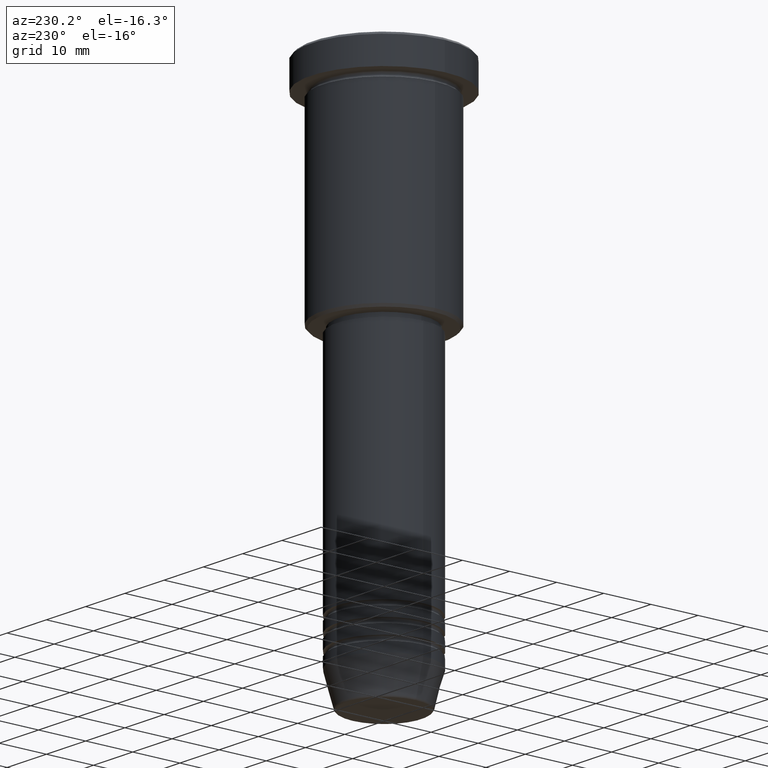
[diagram: clean part render]
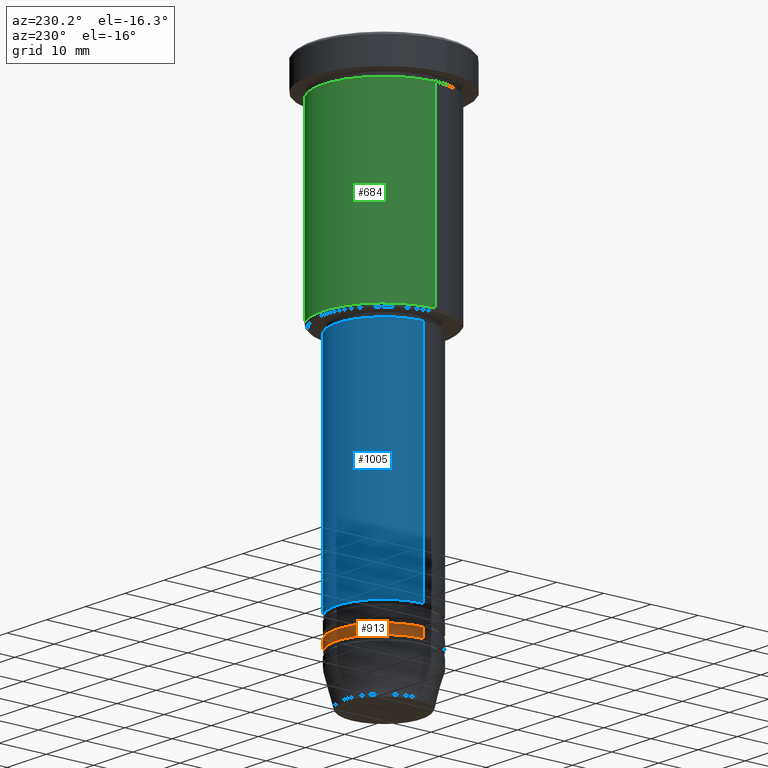
[diagram: same view with three faces highlighted in distinct colors, each labeled with its STEP entity id]
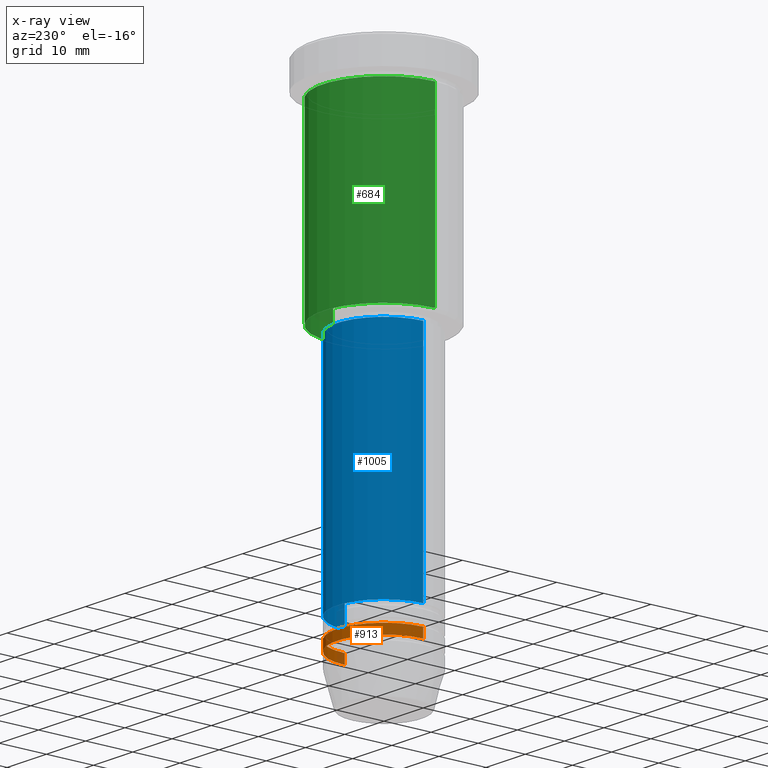
[diagram: x-ray of the same camera — body ghosted, the three highlighted faces saturated]
A machine part, auxiliary view with three faces highlighted in distinct colors.
The next image is the same camera in x-ray (body ghosted, the three faces saturated) — at least one of them is partly hidden behind the body in this view.
Their STEP definitions:

[orange] entity #913 — the highlighted cylindrical surface (partial cylindrical patch) has radius 10 mm, axis along (-0, -0, 1).
#13 = CARTESIAN_POINT ( 'NONE',  ( 10.00000000000000000, 0.000000000000000000, 0.000000000000000000 ) ) ;
#79 = DIRECTION ( 'NONE',  ( -0.000000000000000000, -0.000000000000000000, 1.000000000000000000 ) ) ;
#85 = CARTESIAN_POINT ( 'NONE',  ( 0.000000000000000000, 0.000000000000000000, -98.99999999999998579 ) ) ;
#124 = CARTESIAN_POINT ( 'NONE',  ( 0.000000000000000000, 0.000000000000000000, 0.000000000000000000 ) ) ;
#197 = LINE ( 'NONE', #13, #371 ) ;
#204 = AXIS2_PLACEMENT_3D ( 'NONE', #124, #594, #304 ) ;
#224 = EDGE_CURVE ( 'NONE', #242, #749, #1117, .T. ) ;
#240 = EDGE_CURVE ( 'NONE', #242, #1168, #197, .T. ) ;
#242 = VERTEX_POINT ( 'NONE', #657 ) ;
#291 = DIRECTION ( 'NONE',  ( -0.000000000000000000, -0.000000000000000000, 1.000000000000000000 ) ) ;
#292 = EDGE_CURVE ( 'NONE', #1168, #963, #836, .T. ) ;
#301 = ORIENTED_EDGE ( 'NONE', *, *, #224, .T. ) ;
#304 = DIRECTION ( 'NONE',  ( 1.000000000000000000, 0.000000000000000000, 0.000000000000000000 ) ) ;
#326 = ORIENTED_EDGE ( 'NONE', *, *, #240, .F. ) ;
#339 = VECTOR ( 'NONE', #724, 1000.000000000000000 ) ;
#363 = LINE ( 'NONE', #1113, #339 ) ;
#371 = VECTOR ( 'NONE', #291, 1000.000000000000000 ) ;
#379 = DIRECTION ( 'NONE',  ( -0.000000000000000000, -0.000000000000000000, 1.000000000000000000 ) ) ;
#410 = ORIENTED_EDGE ( 'NONE', *, *, #292, .F. ) ;
#480 = CARTESIAN_POINT ( 'NONE',  ( 10.00000000000000000, 0.000000000000000000, -98.99999999999998579 ) ) ;
#565 = CARTESIAN_POINT ( 'NONE',  ( -10.00000000000000000, 1.224646799147353256E-15, -100.9999999999999716 ) ) ;
#566 = DIRECTION ( 'NONE',  ( 1.000000000000000000, 0.000000000000000000, 0.000000000000000000 ) ) ;
#594 = DIRECTION ( 'NONE',  ( -0.000000000000000000, -0.000000000000000000, 1.000000000000000000 ) ) ;
#657 = CARTESIAN_POINT ( 'NONE',  ( 10.00000000000000000, 0.000000000000000000, -100.9999999999999716 ) ) ;
#724 = DIRECTION ( 'NONE',  ( -0.000000000000000000, -0.000000000000000000, 1.000000000000000000 ) ) ;
#749 = VERTEX_POINT ( 'NONE', #565 ) ;
#756 = FACE_OUTER_BOUND ( 'NONE', #1015, .T. ) ;
#836 = CIRCLE ( 'NONE', #1138, 10.00000000000000000 ) ;
#913 = ADVANCED_FACE ( 'NONE', ( #756 ), #1125, .T. ) ;
#963 = VERTEX_POINT ( 'NONE', #1075 ) ;
#1015 = EDGE_LOOP ( 'NONE', ( #301, #1136, #410, #326 ) ) ;
#1024 = AXIS2_PLACEMENT_3D ( 'NONE', #1163, #79, #1077 ) ;
#1075 = CARTESIAN_POINT ( 'NONE',  ( -10.00000000000000000, 1.224646799147353256E-15, -98.99999999999998579 ) ) ;
#1077 = DIRECTION ( 'NONE',  ( 1.000000000000000000, 0.000000000000000000, 0.000000000000000000 ) ) ;
#1113 = CARTESIAN_POINT ( 'NONE',  ( -10.00000000000000000, 1.224646799147353256E-15, 0.000000000000000000 ) ) ;
#1117 = CIRCLE ( 'NONE', #1024, 10.00000000000000000 ) ;
#1125 = CYLINDRICAL_SURFACE ( 'NONE', #204, 10.00000000000000000 ) ;
#1136 = ORIENTED_EDGE ( 'NONE', *, *, #1159, .T. ) ;
#1138 = AXIS2_PLACEMENT_3D ( 'NONE', #85, #379, #566 ) ;
#1159 = EDGE_CURVE ( 'NONE', #749, #963, #363, .T. ) ;
#1163 = CARTESIAN_POINT ( 'NONE',  ( 0.000000000000000000, 0.000000000000000000, -100.9999999999999716 ) ) ;
#1168 = VERTEX_POINT ( 'NONE', #480 ) ;

[blue] entity #1005 — the highlighted cylindrical surface (partial cylindrical patch) has radius 10 mm, axis along (-0, -0, 1).
#55 = CIRCLE ( 'NONE', #472, 10.00000000000000000 ) ;
#161 = DIRECTION ( 'NONE',  ( -0.000000000000000000, -0.000000000000000000, 1.000000000000000000 ) ) ;
#181 = CYLINDRICAL_SURFACE ( 'NONE', #1142, 10.00000000000000000 ) ;
#182 = VERTEX_POINT ( 'NONE', #972 ) ;
#200 = CARTESIAN_POINT ( 'NONE',  ( 0.000000000000000000, 0.000000000000000000, -94.99999999999997158 ) ) ;
#201 = VECTOR ( 'NONE', #645, 1000.000000000000000 ) ;
#212 = ORIENTED_EDGE ( 'NONE', *, *, #908, .T. ) ;
#244 = VERTEX_POINT ( 'NONE', #653 ) ;
#278 = EDGE_CURVE ( 'NONE', #244, #182, #286, .T. ) ;
#286 = LINE ( 'NONE', #995, #201 ) ;
#293 = DIRECTION ( 'NONE',  ( -0.000000000000000000, -0.000000000000000000, 1.000000000000000000 ) ) ;
#340 = DIRECTION ( 'NONE',  ( 1.000000000000000000, 0.000000000000000000, 0.000000000000000000 ) ) ;
#349 = CARTESIAN_POINT ( 'NONE',  ( 10.00000000000000000, 0.000000000000000000, 0.000000000000000000 ) ) ;
#403 = DIRECTION ( 'NONE',  ( 1.000000000000000000, 0.000000000000000000, 0.000000000000000000 ) ) ;
#433 = DIRECTION ( 'NONE',  ( -0.000000000000000000, -0.000000000000000000, 1.000000000000000000 ) ) ;
#449 = CARTESIAN_POINT ( 'NONE',  ( 0.000000000000000000, 0.000000000000000000, 0.000000000000000000 ) ) ;
#459 = VERTEX_POINT ( 'NONE', #589 ) ;
#472 = AXIS2_PLACEMENT_3D ( 'NONE', #200, #293, #403 ) ;
#490 = AXIS2_PLACEMENT_3D ( 'NONE', #689, #161, #340 ) ;
#584 = EDGE_CURVE ( 'NONE', #459, #182, #1004, .T. ) ;
#589 = CARTESIAN_POINT ( 'NONE',  ( 10.00000000000000000, 0.000000000000000000, -47.00000000000000711 ) ) ;
#622 = DIRECTION ( 'NONE',  ( 1.000000000000000000, 0.000000000000000000, 0.000000000000000000 ) ) ;
#645 = DIRECTION ( 'NONE',  ( -0.000000000000000000, -0.000000000000000000, 1.000000000000000000 ) ) ;
#652 = EDGE_CURVE ( 'NONE', #1097, #459, #882, .T. ) ;
#653 = CARTESIAN_POINT ( 'NONE',  ( -10.00000000000000000, 1.224646799147353256E-15, -94.99999999999997158 ) ) ;
#689 = CARTESIAN_POINT ( 'NONE',  ( 0.000000000000000000, 0.000000000000000000, -47.00000000000000711 ) ) ;
#822 = ORIENTED_EDGE ( 'NONE', *, *, #278, .T. ) ;
#882 = LINE ( 'NONE', #349, #1026 ) ;
#908 = EDGE_CURVE ( 'NONE', #1097, #244, #55, .T. ) ;
#970 = DIRECTION ( 'NONE',  ( -0.000000000000000000, -0.000000000000000000, 1.000000000000000000 ) ) ;
#972 = CARTESIAN_POINT ( 'NONE',  ( -10.00000000000000000, 1.224646799147353256E-15, -47.00000000000000711 ) ) ;
#995 = CARTESIAN_POINT ( 'NONE',  ( -10.00000000000000000, 1.224646799147353256E-15, 0.000000000000000000 ) ) ;
#1004 = CIRCLE ( 'NONE', #490, 10.00000000000000000 ) ;
#1005 = ADVANCED_FACE ( 'NONE', ( #1078 ), #181, .T. ) ;
#1020 = ORIENTED_EDGE ( 'NONE', *, *, #652, .F. ) ;
#1026 = VECTOR ( 'NONE', #970, 1000.000000000000000 ) ;
#1027 = ORIENTED_EDGE ( 'NONE', *, *, #584, .F. ) ;
#1078 = FACE_OUTER_BOUND ( 'NONE', #1093, .T. ) ;
#1088 = CARTESIAN_POINT ( 'NONE',  ( 10.00000000000000000, 0.000000000000000000, -94.99999999999997158 ) ) ;
#1093 = EDGE_LOOP ( 'NONE', ( #212, #822, #1027, #1020 ) ) ;
#1097 = VERTEX_POINT ( 'NONE', #1088 ) ;
#1142 = AXIS2_PLACEMENT_3D ( 'NONE', #449, #433, #622 ) ;

[green] entity #684 — the highlighted cylindrical surface (partial cylindrical patch) has radius 13 mm, axis along (-0, -0, 1).
#23 = EDGE_CURVE ( 'NONE', #875, #585, #235, .T. ) ;
#58 = FACE_OUTER_BOUND ( 'NONE', #1003, .T. ) ;
#64 = ORIENTED_EDGE ( 'NONE', *, *, #1013, .T. ) ;
#69 = CYLINDRICAL_SURFACE ( 'NONE', #355, 13.00000000000000000 ) ;
#89 = CARTESIAN_POINT ( 'NONE',  ( 13.00000000000000000, 0.000000000000000000, -6.999999999999995559 ) ) ;
#136 = ORIENTED_EDGE ( 'NONE', *, *, #662, .F. ) ;
#143 = DIRECTION ( 'NONE',  ( -0.000000000000000000, -0.000000000000000000, 1.000000000000000000 ) ) ;
#187 = CIRCLE ( 'NONE', #417, 13.00000000000000000 ) ;
#235 = LINE ( 'NONE', #506, #430 ) ;
#296 = CARTESIAN_POINT ( 'NONE',  ( 13.00000000000000000, 0.000000000000000000, -45.50000000000002842 ) ) ;
#325 = DIRECTION ( 'NONE',  ( -0.000000000000000000, -0.000000000000000000, 1.000000000000000000 ) ) ;
#344 = CARTESIAN_POINT ( 'NONE',  ( -13.00000000000000000, 1.592040838891559095E-15, -6.999999999999995559 ) ) ;
#355 = AXIS2_PLACEMENT_3D ( 'NONE', #429, #800, #701 ) ;
#417 = AXIS2_PLACEMENT_3D ( 'NONE', #924, #825, #1183 ) ;
#429 = CARTESIAN_POINT ( 'NONE',  ( 0.000000000000000000, 0.000000000000000000, 0.000000000000000000 ) ) ;
#430 = VECTOR ( 'NONE', #782, 1000.000000000000000 ) ;
#506 = CARTESIAN_POINT ( 'NONE',  ( -13.00000000000000000, 1.592040838891559095E-15, 0.000000000000000000 ) ) ;
#534 = DIRECTION ( 'NONE',  ( -1.000000000000000000, 0.000000000000000000, 0.000000000000000000 ) ) ;
#585 = VERTEX_POINT ( 'NONE', #344 ) ;
#586 = CARTESIAN_POINT ( 'NONE',  ( -13.00000000000000000, 1.592040838891559095E-15, -45.50000000000002842 ) ) ;
#647 = VECTOR ( 'NONE', #143, 1000.000000000000000 ) ;
#662 = EDGE_CURVE ( 'NONE', #867, #768, #962, .T. ) ;
#684 = ADVANCED_FACE ( 'NONE', ( #58 ), #69, .T. ) ;
#701 = DIRECTION ( 'NONE',  ( 1.000000000000000000, 0.000000000000000000, 0.000000000000000000 ) ) ;
#768 = VERTEX_POINT ( 'NONE', #89 ) ;
#777 = CARTESIAN_POINT ( 'NONE',  ( 0.000000000000000000, 0.000000000000000000, -45.50000000000002842 ) ) ;
#782 = DIRECTION ( 'NONE',  ( -0.000000000000000000, -0.000000000000000000, 1.000000000000000000 ) ) ;
#800 = DIRECTION ( 'NONE',  ( -0.000000000000000000, -0.000000000000000000, 1.000000000000000000 ) ) ;
#824 = EDGE_CURVE ( 'NONE', #768, #585, #187, .T. ) ;
#825 = DIRECTION ( 'NONE',  ( -0.000000000000000000, -0.000000000000000000, 1.000000000000000000 ) ) ;
#867 = VERTEX_POINT ( 'NONE', #296 ) ;
#875 = VERTEX_POINT ( 'NONE', #586 ) ;
#876 = ORIENTED_EDGE ( 'NONE', *, *, #824, .F. ) ;
#924 = CARTESIAN_POINT ( 'NONE',  ( 0.000000000000000000, 0.000000000000000000, -6.999999999999995559 ) ) ;
#951 = ORIENTED_EDGE ( 'NONE', *, *, #23, .T. ) ;
#962 = LINE ( 'NONE', #1058, #647 ) ;
#986 = CIRCLE ( 'NONE', #1122, 13.00000000000000000 ) ;
#1003 = EDGE_LOOP ( 'NONE', ( #64, #951, #876, #136 ) ) ;
#1013 = EDGE_CURVE ( 'NONE', #867, #875, #986, .T. ) ;
#1058 = CARTESIAN_POINT ( 'NONE',  ( 13.00000000000000000, 0.000000000000000000, 0.000000000000000000 ) ) ;
#1122 = AXIS2_PLACEMENT_3D ( 'NONE', #777, #325, #534 ) ;
#1183 = DIRECTION ( 'NONE',  ( 1.000000000000000000, 0.000000000000000000, 0.000000000000000000 ) ) ;